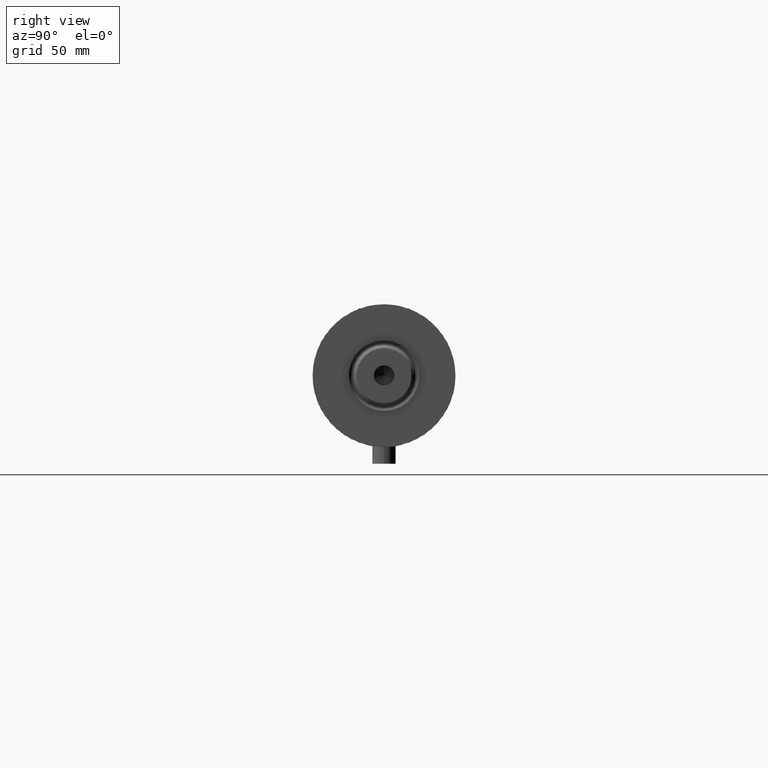
[diagram: clean part render]
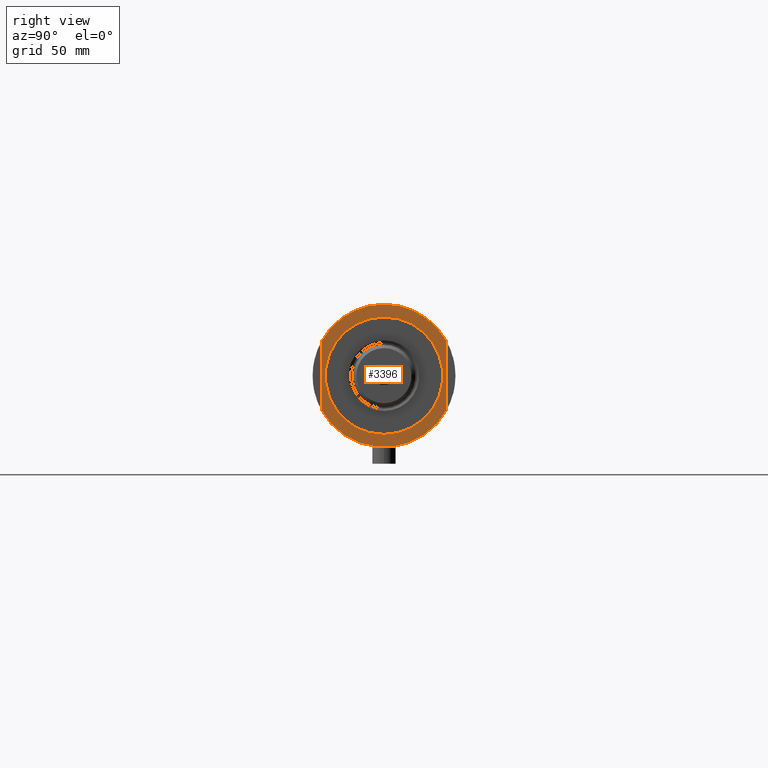
[diagram: same view with one face highlighted and labeled with its STEP entity id]
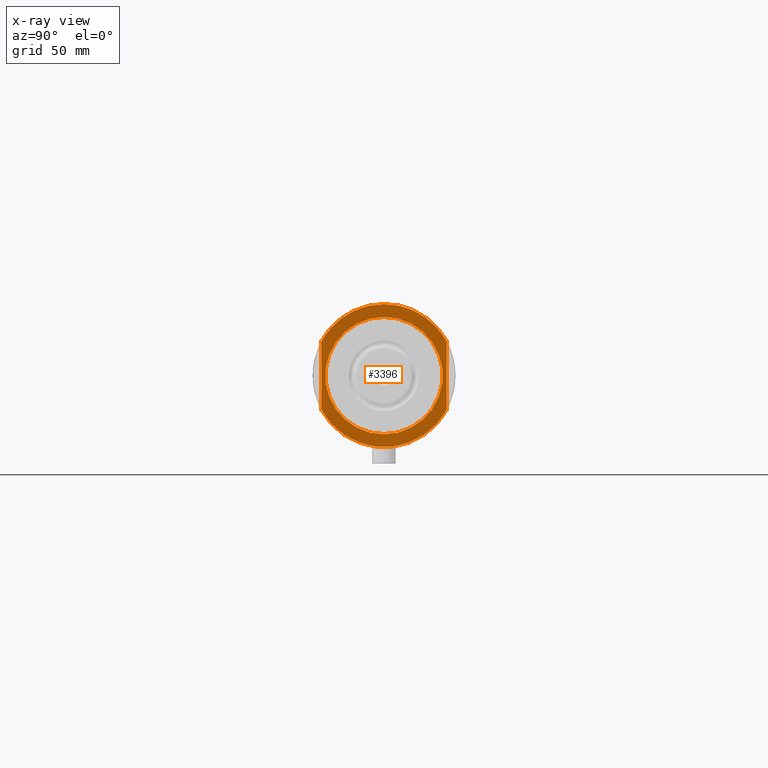
[diagram: x-ray of the same camera — body ghosted, the highlighted face saturated]
A machine part, right view. The second image highlights one B-rep face of the part: STEP entity #3396.
The next image is the same camera in x-ray: the body ghosted, the highlighted face saturated — about 0% of this face is hidden behind the body in this view.
In plain terms, the highlighted planar face has unit normal (1, 0, -0).
Its self-contained STEP definition (entity closure, byte-faithful):
#211 = EDGE_CURVE ( 'NONE', #4215, #4187, #1968, .T. ) ;
#220 = CARTESIAN_POINT ( 'NONE',  ( 0.000000000000000000, 0.000000000000000000, 25.19999999999999929 ) ) ;
#285 = FACE_BOUND ( 'NONE', #1597, .T. ) ;
#325 = PLANE ( 'NONE',  #2055 ) ;
#337 = ORIENTED_EDGE ( 'NONE', *, *, #1740, .F. ) ;
#552 = AXIS2_PLACEMENT_3D ( 'NONE', #220, #4101, #4009 ) ;
#785 = DIRECTION ( 'NONE',  ( 1.000000000000000000, 0.000000000000000000, 0.000000000000000000 ) ) ;
#794 = LINE ( 'NONE', #2230, #2839 ) ;
#827 = CIRCLE ( 'NONE', #552, 36.50000000000000000 ) ;
#1067 = DIRECTION ( 'NONE',  ( 1.000000000000000000, 0.000000000000000000, 0.000000000000000000 ) ) ;
#1123 = DIRECTION ( 'NONE',  ( 0.000000000000000000, 0.000000000000000000, 1.000000000000000000 ) ) ;
#1160 = CARTESIAN_POINT ( 'NONE',  ( -17.55704986607943141, 32.00000000000000000, 25.19999999999999929 ) ) ;
#1295 = EDGE_CURVE ( 'NONE', #2158, #2926, #794, .T. ) ;
#1297 = DIRECTION ( 'NONE',  ( 0.000000000000000000, 0.000000000000000000, 1.000000000000000000 ) ) ;
#1313 = CARTESIAN_POINT ( 'NONE',  ( 17.55704986607943496, 32.00000000000000000, 25.19999999999999929 ) ) ;
#1377 = EDGE_CURVE ( 'NONE', #2906, #2926, #827, .T. ) ;
#1378 = CARTESIAN_POINT ( 'NONE',  ( -17.55704986607943496, 32.00000000000000000, 25.19999999999999929 ) ) ;
#1485 = VERTEX_POINT ( 'NONE', #1313 ) ;
#1572 = CIRCLE ( 'NONE', #3513, 30.00000000000000355 ) ;
#1597 = EDGE_LOOP ( 'NONE', ( #1754, #3836 ) ) ;
#1735 = DIRECTION ( 'NONE',  ( 0.000000000000000000, 0.000000000000000000, 1.000000000000000000 ) ) ;
#1740 = EDGE_CURVE ( 'NONE', #2946, #1485, #4272, .T. ) ;
#1754 = ORIENTED_EDGE ( 'NONE', *, *, #211, .T. ) ;
#1876 = CARTESIAN_POINT ( 'NONE',  ( 0.000000000000000000, 0.000000000000000000, 25.19999999999999929 ) ) ;
#1915 = AXIS2_PLACEMENT_3D ( 'NONE', #2826, #1123, #785 ) ;
#1917 = DIRECTION ( 'NONE',  ( -0.000000000000000000, -0.000000000000000000, -1.000000000000000000 ) ) ;
#1968 = CIRCLE ( 'NONE', #3204, 30.00000000000000355 ) ;
#2055 = AXIS2_PLACEMENT_3D ( 'NONE', #1876, #1297, #2317 ) ;
#2139 = ORIENTED_EDGE ( 'NONE', *, *, #1295, .F. ) ;
#2158 = VERTEX_POINT ( 'NONE', #3725 ) ;
#2175 = DIRECTION ( 'NONE',  ( 1.000000000000000000, 0.000000000000000000, 0.000000000000000000 ) ) ;
#2190 = ORIENTED_EDGE ( 'NONE', *, *, #3305, .T. ) ;
#2227 = DIRECTION ( 'NONE',  ( 1.000000000000000000, 0.000000000000000000, 0.000000000000000000 ) ) ;
#2230 = CARTESIAN_POINT ( 'NONE',  ( -17.55704986607943141, -32.00000000000000000, 25.19999999999999929 ) ) ;
#2317 = DIRECTION ( 'NONE',  ( 1.000000000000000000, 0.000000000000000000, -0.000000000000000000 ) ) ;
#2405 = VECTOR ( 'NONE', #2175, 1000.000000000000000 ) ;
#2476 = ORIENTED_EDGE ( 'NONE', *, *, #1377, .T. ) ;
#2488 = CIRCLE ( 'NONE', #3153, 36.50000000000000000 ) ;
#2599 = CARTESIAN_POINT ( 'NONE',  ( 30.00000000000000355, 0.000000000000000000, 25.19999999999999929 ) ) ;
#2703 = CIRCLE ( 'NONE', #1915, 36.50000000000000000 ) ;
#2746 = CARTESIAN_POINT ( 'NONE',  ( 0.000000000000000000, 0.000000000000000000, 25.19999999999999929 ) ) ;
#2810 = CARTESIAN_POINT ( 'NONE',  ( -17.55704986607943496, -32.00000000000000000, 25.19999999999999929 ) ) ;
#2826 = CARTESIAN_POINT ( 'NONE',  ( 0.000000000000000000, 0.000000000000000000, 25.19999999999999929 ) ) ;
#2839 = VECTOR ( 'NONE', #3630, 1000.000000000000000 ) ;
#2906 = VERTEX_POINT ( 'NONE', #4121 ) ;
#2926 = VERTEX_POINT ( 'NONE', #2810 ) ;
#2946 = VERTEX_POINT ( 'NONE', #1378 ) ;
#3153 = AXIS2_PLACEMENT_3D ( 'NONE', #3463, #1735, #1067 ) ;
#3202 = ORIENTED_EDGE ( 'NONE', *, *, #3534, .T. ) ;
#3204 = AXIS2_PLACEMENT_3D ( 'NONE', #3969, #1917, #2227 ) ;
#3303 = EDGE_LOOP ( 'NONE', ( #2139, #2190, #337, #3202, #2476 ) ) ;
#3305 = EDGE_CURVE ( 'NONE', #2158, #1485, #2703, .T. ) ;
#3396 = ADVANCED_FACE ( 'NONE', ( #285, #4473 ), #325, .T. ) ;
#3440 = DIRECTION ( 'NONE',  ( -0.000000000000000000, -0.000000000000000000, -1.000000000000000000 ) ) ;
#3463 = CARTESIAN_POINT ( 'NONE',  ( 0.000000000000000000, 0.000000000000000000, 25.19999999999999929 ) ) ;
#3501 = EDGE_CURVE ( 'NONE', #4187, #4215, #1572, .T. ) ;
#3513 = AXIS2_PLACEMENT_3D ( 'NONE', #2746, #3440, #4144 ) ;
#3534 = EDGE_CURVE ( 'NONE', #2946, #2906, #2488, .T. ) ;
#3630 = DIRECTION ( 'NONE',  ( -1.000000000000000000, -0.000000000000000000, -0.000000000000000000 ) ) ;
#3725 = CARTESIAN_POINT ( 'NONE',  ( 17.55704986607943496, -32.00000000000000000, 25.19999999999999929 ) ) ;
#3836 = ORIENTED_EDGE ( 'NONE', *, *, #3501, .T. ) ;
#3948 = CARTESIAN_POINT ( 'NONE',  ( -30.00000000000000355, 3.673940397442059178E-15, 25.19999999999999929 ) ) ;
#3969 = CARTESIAN_POINT ( 'NONE',  ( 0.000000000000000000, 0.000000000000000000, 25.19999999999999929 ) ) ;
#4009 = DIRECTION ( 'NONE',  ( 1.000000000000000000, 0.000000000000000000, 0.000000000000000000 ) ) ;
#4101 = DIRECTION ( 'NONE',  ( 0.000000000000000000, 0.000000000000000000, 1.000000000000000000 ) ) ;
#4121 = CARTESIAN_POINT ( 'NONE',  ( -36.50000000000000000, 0.000000000000000000, 25.19999999999999929 ) ) ;
#4144 = DIRECTION ( 'NONE',  ( 1.000000000000000000, 0.000000000000000000, 0.000000000000000000 ) ) ;
#4187 = VERTEX_POINT ( 'NONE', #3948 ) ;
#4215 = VERTEX_POINT ( 'NONE', #2599 ) ;
#4272 = LINE ( 'NONE', #1160, #2405 ) ;
#4473 = FACE_OUTER_BOUND ( 'NONE', #3303, .T. ) ;